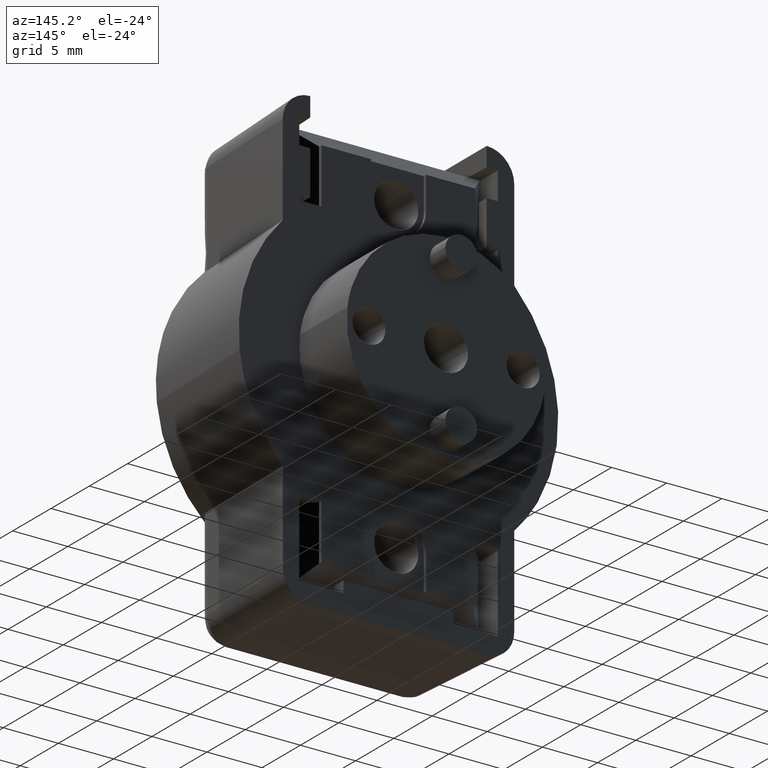
[diagram: clean part render]
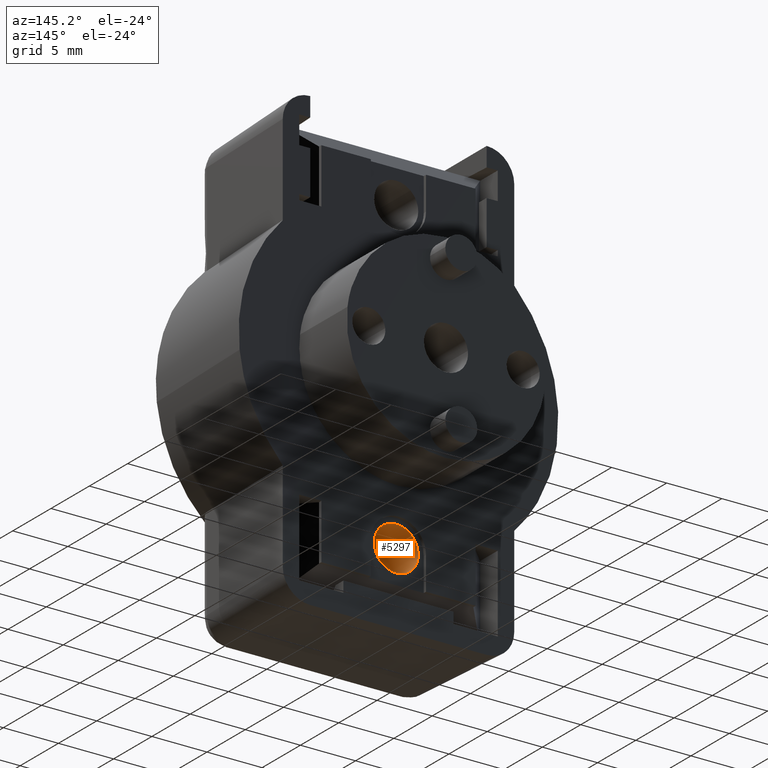
[diagram: same view with one face highlighted and labeled with its STEP entity id]
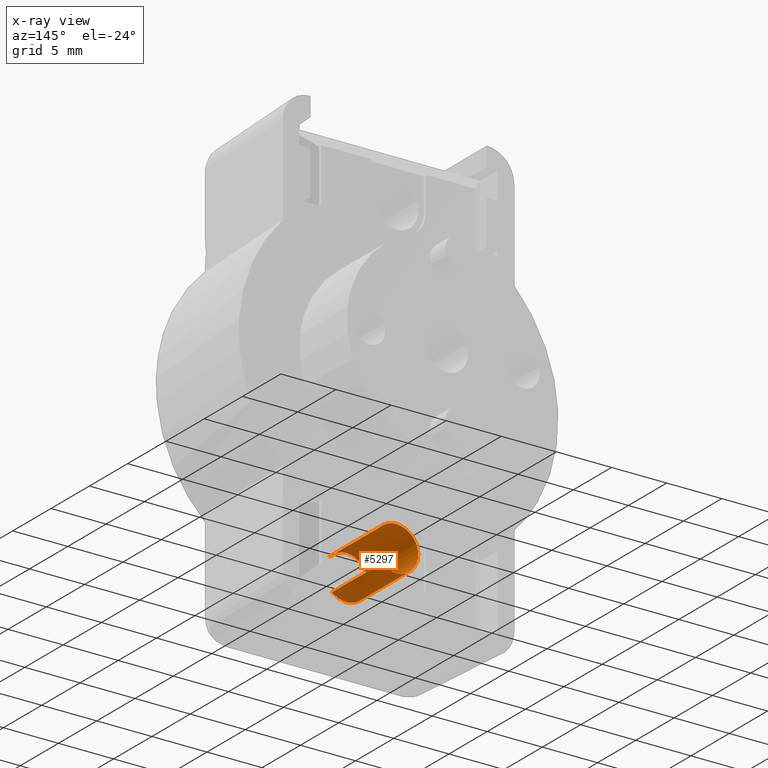
[diagram: x-ray of the same camera — body ghosted, the highlighted face saturated]
A machine part, auxiliary view. The second image highlights one B-rep face of the part: STEP entity #5297.
The next image is the same camera in x-ray: the body ghosted, the highlighted face saturated — about 28% of this face is hidden behind the body in this view.
In plain terms, the highlighted face is a freeform B-spline surface patch.
Its self-contained STEP definition (entity closure, byte-faithful):
#5178=CARTESIAN_POINT('',(6.962499999999807,1.298896096660367,-15.520811931200059));
#5179=CARTESIAN_POINT('',(6.962499999999807,-0.221915834539695,-16.819708027860425));
#5180=CARTESIAN_POINT('',(6.962499999999807,-1.520811931200062,-15.298896096660370));
#5181=CARTESIAN_POINT('',(6.962499999999807,-2.819708027860428,-13.778084165460305));
#5182=CARTESIAN_POINT('',(6.962499999999807,-1.298896096660367,-12.479188068799941));
#5183=CARTESIAN_POINT('',(6.962499999999807,0.221915834539695,-11.180291972139573));
#5184=CARTESIAN_POINT('',(6.962499999999807,1.520811931200062,-12.701103903339630));
#5185=CARTESIAN_POINT('',(0.133437499999971,1.298896096660367,-15.520811931200059));
#5186=CARTESIAN_POINT('',(0.133437499999971,-0.221915834539695,-16.819708027860425));
#5187=CARTESIAN_POINT('',(0.133437499999971,-1.520811931200062,-15.298896096660370));
#5188=CARTESIAN_POINT('',(0.133437499999971,-2.819708027860428,-13.778084165460305));
#5189=CARTESIAN_POINT('',(0.133437499999971,-1.298896096660367,-12.479188068799941));
#5190=CARTESIAN_POINT('',(0.133437499999971,0.221915834539695,-11.180291972139573));
#5191=CARTESIAN_POINT('',(0.133437499999971,1.520811931200062,-12.701103903339630));
#5199=(BOUNDED_SURFACE()B_SPLINE_SURFACE(2,1,((#5178,#5185),(#5179,#5186),(#5180,#5187),(#5181,#5188),(#5182,#5189),(#5183,#5190),(#5184,#5191)),.UNSPECIFIED.,.F.,.F.,.U.)B_SPLINE_SURFACE_WITH_KNOTS((3,2,2,3),(2,2),(0.0,3.313708498984760,6.627416997969521,9.941125496954282),(0.0,6.829062499999836),.UNSPECIFIED.)GEOMETRIC_REPRESENTATION_ITEM()RATIONAL_B_SPLINE_SURFACE(((1.0,1.0),(0.707106781186548,0.707106781186548),(1.0,1.0),(0.707106781186548,0.707106781186548),(1.0,1.0),(0.707106781186548,0.707106781186548),(1.0,1.0)))REPRESENTATION_ITEM('')SURFACE());
#5200=CARTESIAN_POINT('',(0.299999999999967,0.0,-16.0));
#5201=VERTEX_POINT('',#5200);
#5202=CARTESIAN_POINT('',(0.300000000000012,1.298894724990380,-15.520813102714770));
#5203=VERTEX_POINT('',#5202);
#5204=CARTESIAN_POINT('',(0.299999999999967,0.0,-16.0));
#5205=CARTESIAN_POINT('',(0.299999999999967,0.737837929533466,-15.999999999999996));
#5206=CARTESIAN_POINT('',(0.300000000000012,1.298894724990380,-15.520813102714762));
#5214=(BOUNDED_CURVE()B_SPLINE_CURVE(2,(#5204,#5205,#5206),.UNSPECIFIED.,.F.,.U.)B_SPLINE_CURVE_WITH_KNOTS((3,3),(0.0,0.113143025048259),.UNSPECIFIED.)CURVE()GEOMETRIC_REPRESENTATION_ITEM()RATIONAL_B_SPLINE_CURVE((1.0,0.867444700829298,0.854871061933397))REPRESENTATION_ITEM(''));
#5215=EDGE_CURVE('',#5201,#5203,#5214,.T.);
#5216=ORIENTED_EDGE('',*,*,#5215,.F.);
#5217=CARTESIAN_POINT('',(0.299999999999967,0.0,-12.0));
#5218=VERTEX_POINT('',#5217);
#5219=CARTESIAN_POINT('',(0.299999999999967,0.0,-12.0));
#5220=CARTESIAN_POINT('',(0.299999999999967,-2.000000000000000,-12.0));
#5221=CARTESIAN_POINT('',(0.299999999999967,-2.0,-14.0));
#5222=CARTESIAN_POINT('',(0.299999999999967,-2.000000000000000,-15.999999999999998));
#5223=CARTESIAN_POINT('',(0.299999999999967,0.0,-16.0));
#5231=(BOUNDED_CURVE()B_SPLINE_CURVE(2,(#5219,#5220,#5221,#5222,#5223),.UNSPECIFIED.,.F.,.U.)B_SPLINE_CURVE_WITH_KNOTS((3,2,3),(0.500000000000000,0.750000000000000,1.0),.UNSPECIFIED.)CURVE()GEOMETRIC_REPRESENTATION_ITEM()RATIONAL_B_SPLINE_CURVE((1.0,0.707106781186548,1.0,0.707106781186548,1.0))REPRESENTATION_ITEM(''));
#5232=EDGE_CURVE('',#5218,#5201,#5231,.T.);
#5233=ORIENTED_EDGE('',*,*,#5232,.F.);
#5234=CARTESIAN_POINT('',(0.299999999999967,1.520813146442684,-12.701105326208630));
#5235=VERTEX_POINT('',#5234);
#5236=CARTESIAN_POINT('',(0.299999999999967,1.520813146442684,-12.701105326208626));
#5237=CARTESIAN_POINT('',(0.299999999999967,0.922013763291956,-12.000000000000002));
#5238=CARTESIAN_POINT('',(0.299999999999967,0.0,-12.0));
#5246=(BOUNDED_CURVE()B_SPLINE_CURVE(2,(#5236,#5237,#5238),.UNSPECIFIED.,.F.,.U.)B_SPLINE_CURVE_WITH_KNOTS((3,3),(0.363143019960682,0.500000000000000),.UNSPECIFIED.)CURVE()GEOMETRIC_REPRESENTATION_ITEM()RATIONAL_B_SPLINE_CURVE((0.854871063064167,0.839662074396783,1.0))REPRESENTATION_ITEM(''));
#5247=EDGE_CURVE('',#5235,#5218,#5246,.T.);
#5248=ORIENTED_EDGE('',*,*,#5247,.F.);
#5249=CARTESIAN_POINT('',(6.799999999999766,1.520813102353563,-12.701105274586711));
#5250=VERTEX_POINT('',#5249);
#5251=CARTESIAN_POINT('',(6.799999999999766,1.520813102353563,-12.701105274586711));
#5252=CARTESIAN_POINT('',(0.299999999999967,1.520813146442684,-12.701105326208630));
#5253=QUASI_UNIFORM_CURVE('',1,(#5251,#5252),.UNSPECIFIED.,.F.,.U.);
#5254=EDGE_CURVE('',#5250,#5235,#5253,.T.);
#5255=ORIENTED_EDGE('',*,*,#5254,.F.);
#5256=CARTESIAN_POINT('',(6.799999999999810,-2.0,-14.0));
#5257=VERTEX_POINT('',#5256);
#5258=CARTESIAN_POINT('',(6.799999999999768,1.520813102353564,-12.701105274586704));
#5259=CARTESIAN_POINT('',(6.799999999999810,0.922013722134407,-12.000000000000004));
#5260=CARTESIAN_POINT('',(6.799999999999810,0.0,-12.0));
#5261=CARTESIAN_POINT('',(6.799999999999811,-2.000000000000000,-12.0));
#5262=CARTESIAN_POINT('',(6.799999999999810,-2.0,-14.0));
#5270=(BOUNDED_CURVE()B_SPLINE_CURVE(2,(#5258,#5259,#5260,#5261,#5262),.UNSPECIFIED.,.F.,.U.)B_SPLINE_CURVE_WITH_KNOTS((3,2,3),(0.113143025090283,0.250000000000000,0.500000000000000),.UNSPECIFIED.)CURVE()GEOMETRIC_REPRESENTATION_ITEM()RATIONAL_B_SPLINE_CURVE((0.854871061924056,0.839662080406485,1.0,0.707106781186548,1.0))REPRESENTATION_ITEM(''));
#5271=EDGE_CURVE('',#5250,#5257,#5270,.T.);
#5272=ORIENTED_EDGE('',*,*,#5271,.T.);
#5273=CARTESIAN_POINT('',(6.799999999999811,1.298894673791376,-15.520813146442681));
#5274=VERTEX_POINT('',#5273);
#5275=CARTESIAN_POINT('',(6.799999999999810,-2.0,-14.0));
#5276=CARTESIAN_POINT('',(6.799999999999811,-2.000000000000000,-15.999999999999998));
#5277=CARTESIAN_POINT('',(6.799999999999810,0.0,-16.0));
#5278=CARTESIAN_POINT('',(6.799999999999811,0.737837891286029,-16.000000000000004));
#5279=CARTESIAN_POINT('',(6.799999999999811,1.298894673791376,-15.520813146442681));
#5287=(BOUNDED_CURVE()B_SPLINE_CURVE(2,(#5275,#5276,#5277,#5278,#5279),.UNSPECIFIED.,.F.,.U.)B_SPLINE_CURVE_WITH_KNOTS((3,2,3),(0.500000000000000,0.750000000000000,0.863143019960682),.UNSPECIFIED.)CURVE()GEOMETRIC_REPRESENTATION_ITEM()RATIONAL_B_SPLINE_CURVE((1.0,0.707106781186548,1.0,0.867444706789764,0.854871063064167))REPRESENTATION_ITEM(''));
#5288=EDGE_CURVE('',#5257,#5274,#5287,.T.);
#5289=ORIENTED_EDGE('',*,*,#5288,.T.);
#5290=CARTESIAN_POINT('',(6.799999999999811,1.298894673791376,-15.520813146442681));
#5291=CARTESIAN_POINT('',(0.300000000000012,1.298894724990380,-15.520813102714770));
#5292=QUASI_UNIFORM_CURVE('',1,(#5290,#5291),.UNSPECIFIED.,.F.,.U.);
#5293=EDGE_CURVE('',#5274,#5203,#5292,.T.);
#5294=ORIENTED_EDGE('',*,*,#5293,.T.);
#5295=EDGE_LOOP('',(#5216,#5233,#5248,#5255,#5272,#5289,#5294));
#5296=FACE_OUTER_BOUND('',#5295,.T.);
#5297=ADVANCED_FACE('',(#5296),#5199,.F.);